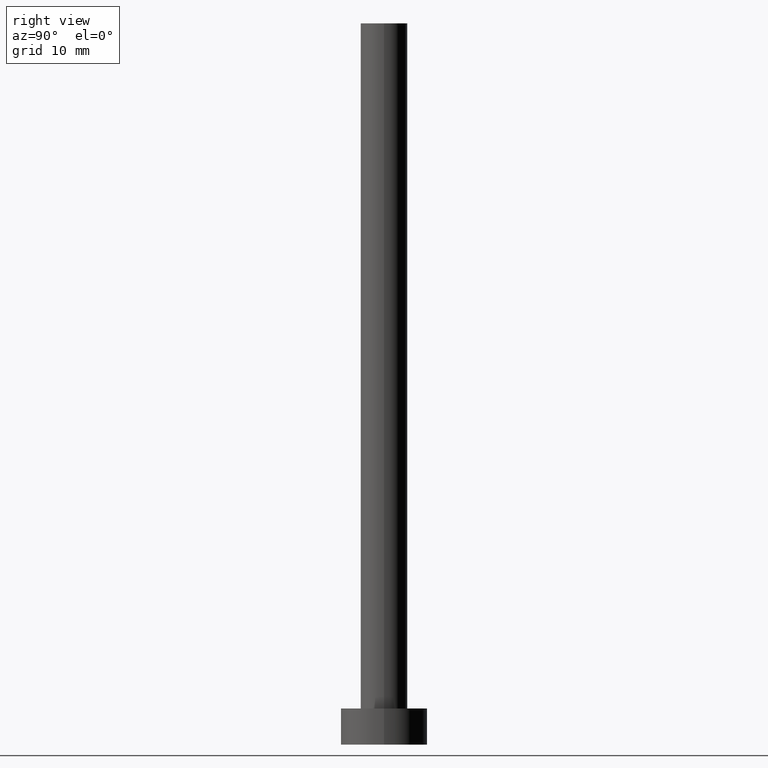
[diagram: clean part render]
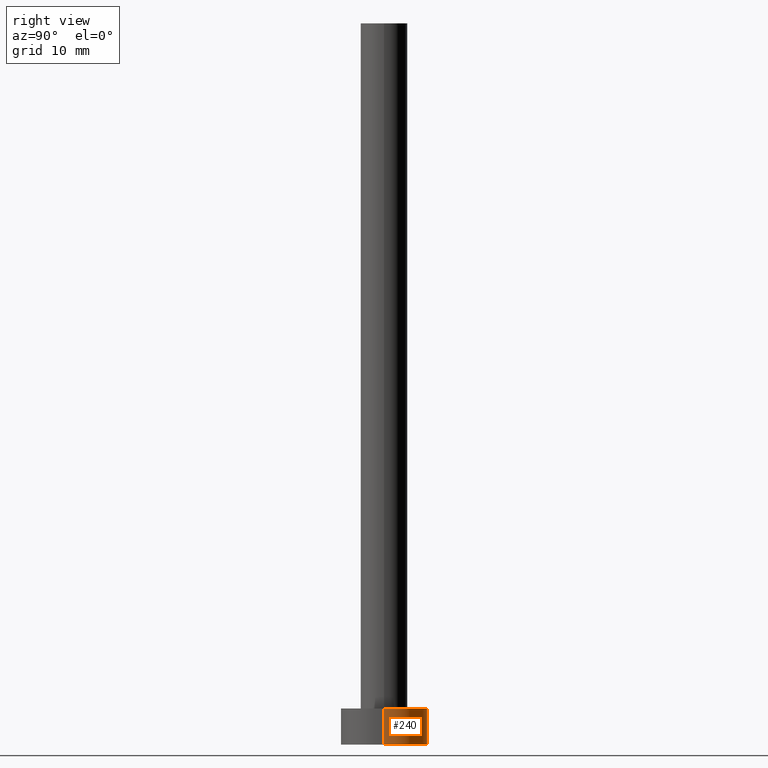
[diagram: same view with one face highlighted and labeled with its STEP entity id]
A machine part, right view. The second image highlights one B-rep face of the part: STEP entity #240.
In plain terms, the highlighted cylindrical surface (partial cylindrical patch) has radius 6 mm, axis along (-0, -0, -1).
Its self-contained STEP definition (entity closure, byte-faithful):
#1 = AXIS2_PLACEMENT_3D ( 'NONE', #159, #96, #218 ) ;
#3 = CIRCLE ( 'NONE', #171, 6.000000000000000888 ) ;
#7 = DIRECTION ( 'NONE',  ( 1.000000000000000000, 0.000000000000000000, 0.000000000000000000 ) ) ;
#12 = EDGE_CURVE ( 'NONE', #200, #25, #251, .T. ) ;
#13 = CARTESIAN_POINT ( 'NONE',  ( 0.000000000000000000, 0.000000000000000000, 0.000000000000000000 ) ) ;
#25 = VERTEX_POINT ( 'NONE', #214 ) ;
#28 = CARTESIAN_POINT ( 'NONE',  ( 0.000000000000000000, 0.000000000000000000, 5.000000000000000000 ) ) ;
#48 = EDGE_CURVE ( 'NONE', #224, #200, #92, .T. ) ;
#51 = EDGE_LOOP ( 'NONE', ( #80, #154, #199, #71 ) ) ;
#70 = VECTOR ( 'NONE', #237, 1000.000000000000000 ) ;
#71 = ORIENTED_EDGE ( 'NONE', *, *, #12, .F. ) ;
#79 = LINE ( 'NONE', #213, #70 ) ;
#80 = ORIENTED_EDGE ( 'NONE', *, *, #48, .F. ) ;
#92 = CIRCLE ( 'NONE', #1, 6.000000000000000888 ) ;
#96 = DIRECTION ( 'NONE',  ( 0.000000000000000000, 0.000000000000000000, 1.000000000000000000 ) ) ;
#117 = CARTESIAN_POINT ( 'NONE',  ( 6.000000000000000888, 7.347880794884120722E-16, 5.000000000000000000 ) ) ;
#123 = VECTOR ( 'NONE', #248, 1000.000000000000000 ) ;
#129 = CARTESIAN_POINT ( 'NONE',  ( -6.000000000000000888, 0.000000000000000000, 5.000000000000000000 ) ) ;
#144 = AXIS2_PLACEMENT_3D ( 'NONE', #28, #189, #165 ) ;
#154 = ORIENTED_EDGE ( 'NONE', *, *, #212, .T. ) ;
#159 = CARTESIAN_POINT ( 'NONE',  ( 0.000000000000000000, 0.000000000000000000, 5.000000000000000000 ) ) ;
#163 = CYLINDRICAL_SURFACE ( 'NONE', #144, 6.000000000000000888 ) ;
#165 = DIRECTION ( 'NONE',  ( -1.000000000000000000, 0.000000000000000000, 0.000000000000000000 ) ) ;
#171 = AXIS2_PLACEMENT_3D ( 'NONE', #13, #242, #7 ) ;
#177 = VERTEX_POINT ( 'NONE', #179 ) ;
#179 = CARTESIAN_POINT ( 'NONE',  ( 6.000000000000000888, 7.347880794884120722E-16, 0.000000000000000000 ) ) ;
#181 = CARTESIAN_POINT ( 'NONE',  ( -6.000000000000000888, 0.000000000000000000, 5.000000000000000000 ) ) ;
#189 = DIRECTION ( 'NONE',  ( -0.000000000000000000, -0.000000000000000000, -1.000000000000000000 ) ) ;
#196 = EDGE_CURVE ( 'NONE', #177, #25, #3, .T. ) ;
#199 = ORIENTED_EDGE ( 'NONE', *, *, #196, .T. ) ;
#200 = VERTEX_POINT ( 'NONE', #129 ) ;
#206 = FACE_OUTER_BOUND ( 'NONE', #51, .T. ) ;
#212 = EDGE_CURVE ( 'NONE', #224, #177, #79, .T. ) ;
#213 = CARTESIAN_POINT ( 'NONE',  ( 6.000000000000000888, 7.347880794884120722E-16, 5.000000000000000000 ) ) ;
#214 = CARTESIAN_POINT ( 'NONE',  ( -6.000000000000000888, 0.000000000000000000, 0.000000000000000000 ) ) ;
#218 = DIRECTION ( 'NONE',  ( 1.000000000000000000, 0.000000000000000000, 0.000000000000000000 ) ) ;
#224 = VERTEX_POINT ( 'NONE', #117 ) ;
#237 = DIRECTION ( 'NONE',  ( -0.000000000000000000, -0.000000000000000000, -1.000000000000000000 ) ) ;
#240 = ADVANCED_FACE ( 'NONE', ( #206 ), #163, .T. ) ;
#242 = DIRECTION ( 'NONE',  ( 0.000000000000000000, 0.000000000000000000, 1.000000000000000000 ) ) ;
#248 = DIRECTION ( 'NONE',  ( -0.000000000000000000, -0.000000000000000000, -1.000000000000000000 ) ) ;
#251 = LINE ( 'NONE', #181, #123 ) ;